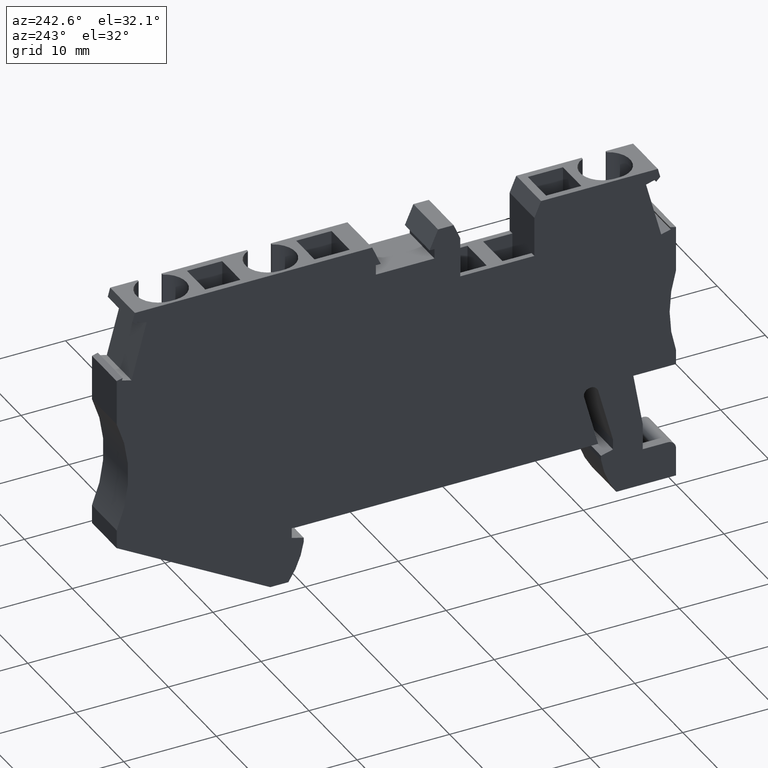
[diagram: clean part render]
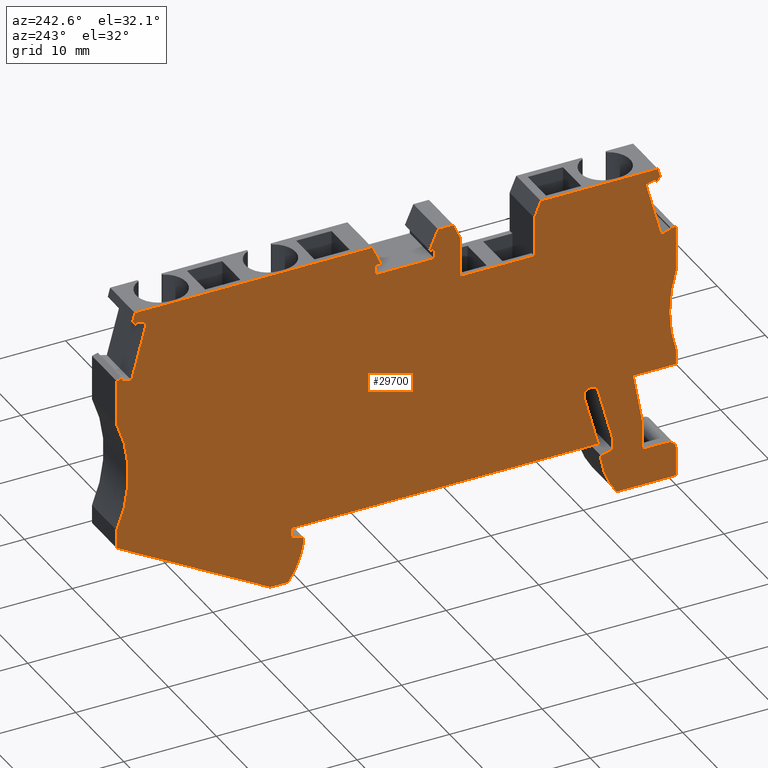
[diagram: same view with one face highlighted and labeled with its STEP entity id]
A machine part, auxiliary view. The second image highlights one B-rep face of the part: STEP entity #29700.
In plain terms, the highlighted planar face has unit normal (-1, 0, -0).
Its self-contained STEP definition (entity closure, byte-faithful):
#570=CARTESIAN_POINT('',(19.4911108748078,-44.4000000000014,48.52));
#580=VERTEX_POINT('',#570);
#630=CARTESIAN_POINT('',(27.2261399010515,-38.8846282117038,48.52));
#640=DIRECTION('',(0.,0.,-1.));
#650=DIRECTION('',(-1.,0.,0.));
#660=AXIS2_PLACEMENT_3D('',#630,#640,#650);
#670=CIRCLE('',#660,9.499999999999);
#680=CARTESIAN_POINT('',(17.8321672216751,-40.300000000002,48.52));
#690=VERTEX_POINT('',#680);
#700=EDGE_CURVE('',#580,#690,#670,.T.);
#1020=CARTESIAN_POINT('',(-31.8869546500592,-18.8507203460335,48.52));
#1030=DIRECTION('',(-0.965925826290942,-0.25881904509553,0.));
#1040=VECTOR('',#1030,1.);
#1050=LINE('',#1020,#1040);
#1060=CARTESIAN_POINT('',(-21.7289289220527,-16.1288855555983,48.52));
#1070=VERTEX_POINT('',#1060);
#1080=CARTESIAN_POINT('',(-22.3678327783245,-16.3000793279225,48.52));
#1090=VERTEX_POINT('',#1080);
#1100=EDGE_CURVE('',#1070,#1090,#1050,.T.);
#1710=CARTESIAN_POINT('',(-7.06783277832442,-15.1500000000016,48.52));
#1720=VERTEX_POINT('',#1710);
#1750=CARTESIAN_POINT('',(-31.4325633273473,-15.1500000000016,48.52));
#1760=DIRECTION('',(-1.,0.,0.));
#1770=VECTOR('',#1760,1.);
#1780=LINE('',#1750,#1770);
#1790=CARTESIAN_POINT('',(0.9321672216753,-15.1500000000016,48.52));
#1800=VERTEX_POINT('',#1790);
#1810=EDGE_CURVE('',#1800,#1720,#1780,.T.);
#3130=CARTESIAN_POINT('',(-15.9267764314572,-44.4000000000014,48.52));
#3140=VERTEX_POINT('',#3130);
#3300=CARTESIAN_POINT('',(-14.2678327783245,-40.3000000000023,48.52));
#3310=VERTEX_POINT('',#3300);
#3340=CARTESIAN_POINT('',(-23.6618054577009,-38.8846282117039,48.52));
#3350=DIRECTION('',(0.,0.,1.));
#3360=DIRECTION('',(1.,0.,0.));
#3370=AXIS2_PLACEMENT_3D('',#3340,#3350,#3360);
#3380=CIRCLE('',#3370,9.499999999999);
#3390=EDGE_CURVE('',#3140,#3310,#3380,.T.);
#3600=CARTESIAN_POINT('',(-12.439544951387,-32.6963521812913,48.52));
#3610=VERTEX_POINT('',#3600);
#3660=CARTESIAN_POINT('',(-13.1156930297916,-32.5151788497187,48.52));
#3670=DIRECTION('',(0.,0.,1.));
#3680=DIRECTION('',(1.,0.,0.));
#3690=AXIS2_PLACEMENT_3D('',#3660,#3670,#3680);
#3700=CIRCLE('',#3690,0.700000000000186);
#3710=CARTESIAN_POINT('',(-12.9558416625104,-31.8336749683074,48.52));
#3720=VERTEX_POINT('',#3710);
#3730=EDGE_CURVE('',#3610,#3720,#3700,.T.);
#4370=CARTESIAN_POINT('',(0.932167221675449,-42.5540372297518,48.52));
#4380=DIRECTION('',(-5.53723733531797E-15,1.,0.));
#4390=VECTOR('',#4380,1.);
#4400=LINE('',#4370,#4390);
#4410=CARTESIAN_POINT('',(0.932167221675279,-10.8500000000035,48.52));
#4420=VERTEX_POINT('',#4410);
#4430=EDGE_CURVE('',#1800,#4420,#4400,.T.);
#5190=CARTESIAN_POINT('',(10.0446672216767,-12.3250000000016,48.52));
#5200=VERTEX_POINT('',#5190);
#5350=CARTESIAN_POINT('',(3.71966722167661,-12.3250000000012,48.52));
#5360=VERTEX_POINT('',#5350);
#5390=CARTESIAN_POINT('',(-31.0856969427963,-12.3249999999992,48.52));
#5400=DIRECTION('',(-1.,5.79813974610488E-14,0.));
#5410=VECTOR('',#5400,1.);
#5420=LINE('',#5390,#5410);
#5430=EDGE_CURVE('',#5200,#5360,#5420,.T.);
#5660=CARTESIAN_POINT('',(37.3932633654038,-16.1288855555993,48.52));
#5670=VERTEX_POINT('',#5660);
#5820=CARTESIAN_POINT('',(37.4637417638794,-16.3919145195451,48.52));
#5830=VERTEX_POINT('',#5820);
#5860=CARTESIAN_POINT('',(45.9551175602486,-48.0821604176267,48.52));
#5870=DIRECTION('',(0.258819045103503,-0.965925826288805,0.));
#5880=VECTOR('',#5870,1.);
#5890=LINE('',#5860,#5880);
#5900=EDGE_CURVE('',#5670,#5830,#5890,.T.);
#6070=CARTESIAN_POINT('',(-16.1198905892186,-40.4603077989502,48.52));
#6080=DIRECTION('',(0.258819045103168,0.965925826288895,0.));
#6090=VECTOR('',#6080,1.);
#6100=LINE('',#6070,#6090);
#6110=CARTESIAN_POINT('',(-15.5678327783241,-38.3999999999967,48.52));
#6120=VERTEX_POINT('',#6110);
#6130=CARTESIAN_POINT('',(-13.9582471789275,-32.3929447639187,48.52));
#6140=VERTEX_POINT('',#6130);
#6150=EDGE_CURVE('',#6120,#6140,#6100,.T.);
#9040=CARTESIAN_POINT('',(17.8321672216754,-39.8483339501617,48.52));
#9050=VERTEX_POINT('',#9040);
#9080=CARTESIAN_POINT('',(-36.2442529339963,-54.3380670604362,48.52));
#9090=DIRECTION('',(0.965925826289086,0.258819045102457,0.));
#9100=VECTOR('',#9090,1.);
#9110=LINE('',#9080,#9100);
#9120=CARTESIAN_POINT('',(19.1321672216756,-39.5000000000013,48.52));
#9130=VERTEX_POINT('',#9120);
#9140=EDGE_CURVE('',#9050,#9130,#9110,.T.);
#9510=CARTESIAN_POINT('',(-20.2328552587309,-10.545462632217,48.52));
#9520=VERTEX_POINT('',#9510);
#9670=CARTESIAN_POINT('',(-20.1623768602548,-10.2824336682674,48.52));
#9680=VERTEX_POINT('',#9670);
#9710=CARTESIAN_POINT('',(-27.8621918696398,-39.0185344922441,48.52));
#9720=DIRECTION('',(0.258819045101928,0.965925826289227,0.));
#9730=VECTOR('',#9720,1.);
#9740=LINE('',#9710,#9730);
#9750=EDGE_CURVE('',#9520,#9680,#9740,.T.);
#10060=CARTESIAN_POINT('',(38.0321672216756,-35.2,48.52));
#10070=VERTEX_POINT('',#10060);
#10100=CARTESIAN_POINT('',(-39.1523305504364,-78.0224586081626,48.52));
#10110=DIRECTION('',(-0.874435210897321,-0.485142311021166,0.));
#10120=VECTOR('',#10110,1.);
#10130=LINE('',#10100,#10120);
#10140=CARTESIAN_POINT('',(21.4498082777127,-44.4000000000015,48.52));
#10150=VERTEX_POINT('',#10140);
#10160=EDGE_CURVE('',#10070,#10150,#10130,.T.);
#11840=CARTESIAN_POINT('',(10.4418215966526,-9.15000000000319,48.52));
#11850=VERTEX_POINT('',#11840);
#11880=CARTESIAN_POINT('',(-30.6958559619301,-9.15000000000321,48.52));
#11890=DIRECTION('',(1.,0.,0.));
#11900=VECTOR('',#11890,1.);
#11910=LINE('',#11880,#11900);
#11920=CARTESIAN_POINT('',(36.0719729923297,-9.1500000000032,48.52));
#11930=VERTEX_POINT('',#11920);
#11940=EDGE_CURVE('',#11850,#11930,#11910,.T.);
#12170=CARTESIAN_POINT('',(-22.3678327783245,-39.6931569607141,48.52));
#12180=DIRECTION('',(-2.05391259555654E-15,1.,0.));
#12190=VECTOR('',#12180,1.);
#12200=LINE('',#12170,#12190);
#12210=CARTESIAN_POINT('',(-22.3678327783245,-31.8000000000004,48.52));
#12220=VERTEX_POINT('',#12210);
#12230=CARTESIAN_POINT('',(-22.3678327783245,-30.2000000000027,48.52));
#12240=VERTEX_POINT('',#12230);
#12250=EDGE_CURVE('',#12220,#12240,#12200,.T.);
#13080=CARTESIAN_POINT('',(-22.3678327783245,-21.2000000000028,48.52));
#13090=VERTEX_POINT('',#13080);
#13120=CARTESIAN_POINT('',(-22.3678327783245,-39.6931569607141,48.52));
#13130=DIRECTION('',(-2.05391259555654E-15,1.,0.));
#13140=VECTOR('',#13130,1.);
#13150=LINE('',#13120,#13140);
#13160=EDGE_CURVE('',#13090,#1090,#13150,.T.);
#15080=CARTESIAN_POINT('',(-36.6769207995787,-25.7000000000028,48.52));
#15090=DIRECTION('',(0.,0.,1.));
#15100=DIRECTION('',(1.,0.,0.));
#15110=AXIS2_PLACEMENT_3D('',#15080,#15090,#15100);
#15120=CIRCLE('',#15110,15.);
#15130=EDGE_CURVE('',#12240,#13090,#15120,.T.);
#21140=CARTESIAN_POINT('',(46.5224801796062,-48.1518237877173,48.52));
#21150=DIRECTION('',(0.258819045102926,-0.96592582628896,0.));
#21160=VECTOR('',#21150,1.);
#21170=LINE('',#21140,#21160);
#21180=CARTESIAN_POINT('',(36.3299328899744,-10.1127194443267,48.52));
#21190=VERTEX_POINT('',#21180);
#21200=EDGE_CURVE('',#11930,#21190,#21170,.T.);
#21830=CARTESIAN_POINT('',(19.1321672216756,-44.7887162381846,48.52));
#21840=DIRECTION('',(0.,1.,0.));
#21850=VECTOR('',#21840,1.);
#21860=LINE('',#21830,#21850);
#21870=CARTESIAN_POINT('',(19.1321672216756,-38.4000000000014,48.52));
#21880=VERTEX_POINT('',#21870);
#21890=EDGE_CURVE('',#9130,#21880,#21860,.T.);
#22440=CARTESIAN_POINT('',(10.0446672216767,-43.6729115409796,48.52));
#22450=DIRECTION('',(0.,-1.,0.));
#22460=VECTOR('',#22450,1.);
#22470=LINE('',#22440,#22460);
#22480=CARTESIAN_POINT('',(10.0446672216767,-11.2550000000016,48.52));
#22490=VERTEX_POINT('',#22480);
#22500=EDGE_CURVE('',#22490,#5200,#22470,.T.);
#23250=CARTESIAN_POINT('',(-7.06783277832444,-10.8500000000033,48.52));
#23260=VERTEX_POINT('',#23250);
#23290=CARTESIAN_POINT('',(-7.06783277832433,-41.5717607425285,48.52));
#23300=DIRECTION('',(2.76167977375508E-15,-1.,0.));
#23310=VECTOR('',#23300,1.);
#23320=LINE('',#23290,#23310);
#23330=EDGE_CURVE('',#23260,#1720,#23320,.T.);
#23860=CARTESIAN_POINT('',(9.51676875458971,-11.2550000000016,48.52));
#23870=VERTEX_POINT('',#23860);
#23920=CARTESIAN_POINT('',(-30.9543174626305,-11.2550000000016,48.52));
#23930=DIRECTION('',(1.,0.,0.));
#23940=VECTOR('',#23930,1.);
#23950=LINE('',#23920,#23940);
#23960=EDGE_CURVE('',#23870,#22490,#23950,.T.);
#24460=CARTESIAN_POINT('',(-20.7658666864001,-16.6688508978053,48.52));
#24470=VERTEX_POINT('',#24460);
#24550=CARTESIAN_POINT('',(-21.7994073205286,-16.3919145195456,48.52));
#24560=VERTEX_POINT('',#24550);
#24590=CARTESIAN_POINT('',(-31.2733580505142,-13.8533770723114,48.52));
#24600=DIRECTION('',(-0.96592582628901,0.25881904510274,0.));
#24610=VECTOR('',#24600,1.);
#24620=LINE('',#24590,#24610);
#24630=EDGE_CURVE('',#24470,#24560,#24620,.T.);
#25170=CARTESIAN_POINT('',(-18.7678327783247,-40.4000000000018,48.52));
#25180=VERTEX_POINT('',#25170);
#25330=CARTESIAN_POINT('',(-21.4678327783247,-40.4000000000018,48.52));
#25340=VERTEX_POINT('',#25330);
#25370=CARTESIAN_POINT('',(-34.5328734901456,-40.4000000000018,48.52));
#25380=DIRECTION('',(1.,0.,0.));
#25390=VECTOR('',#25380,1.);
#25400=LINE('',#25370,#25390);
#25410=EDGE_CURVE('',#25340,#25180,#25400,.T.);
#26000=CARTESIAN_POINT('',(-13.9678327783249,-38.4000000000014,48.52));
#26010=VERTEX_POINT('',#26000);
#26040=CARTESIAN_POINT('',(-14.5708539323056,-40.6505055846918,48.52));
#26050=DIRECTION('',(0.258819045102995,0.965925826288942,0.));
#26060=VECTOR('',#26050,1.);
#26070=LINE('',#26040,#26060);
#26080=EDGE_CURVE('',#26010,#3610,#26070,.T.);
#26290=CARTESIAN_POINT('',(3.56530628123637,-42.8773460529762,48.52));
#26300=DIRECTION('',(0.707106781187503,0.707106781185593,0.));
#26310=VECTOR('',#26300,1.);
#26320=LINE('',#26290,#26310);
#26330=CARTESIAN_POINT('',(35.8971897020823,-10.5454626322177,48.52));
#26340=VERTEX_POINT('',#26330);
#26350=EDGE_CURVE('',#26340,#21190,#26320,.T.);
#26580=CARTESIAN_POINT('',(-18.7678327783247,-40.1351813799645,48.52));
#26590=DIRECTION('',(0.,1.,0.));
#26600=VECTOR('',#26590,1.);
#26610=LINE('',#26580,#26600);
#26620=CARTESIAN_POINT('',(-18.7678327783247,-37.5384100015805,48.52));
#26630=VERTEX_POINT('',#26620);
#26640=EDGE_CURVE('',#25180,#26630,#26610,.T.);
#26980=CARTESIAN_POINT('',(3.5299232216756,-12.7935680000014,48.52));
#26990=DIRECTION('',(-0.,-0.,-1.));
#27000=DIRECTION('',(0.,-1.,0.));
#27010=AXIS2_PLACEMENT_3D('',#26980,#26990,#27000);
#27020=PLANE('',#27010);
#27030=CARTESIAN_POINT('',(-29.7042555077718,-1.07406238320153,48.52));
#27040=DIRECTION('',(-0.707106781187495,0.7071067811856,0.));
#27050=VECTOR('',#27040,1.);
#27060=LINE('',#27030,#27050);
#27070=CARTESIAN_POINT('',(-20.6655984466232,-10.112719444326,48.52));
#27080=VERTEX_POINT('',#27070);
#27090=EDGE_CURVE('',#9520,#27080,#27060,.T.);
#27100=ORIENTED_EDGE('',*,*,#27090,.T.);
#27110=ORIENTED_EDGE('',*,*,#9750,.F.);
#27120=CARTESIAN_POINT('',(-30.4949591286781,-7.51382659371658,48.52));
#27130=DIRECTION('',(0.9659258262891,-0.258819045102404,0.));
#27140=VECTOR('',#27130,1.);
#27150=LINE('',#27120,#27140);
#27160=CARTESIAN_POINT('',(-19.1288362261254,-10.559370046527,48.52));
#27170=VERTEX_POINT('',#27160);
#27180=EDGE_CURVE('',#9680,#27170,#27150,.T.);
#27190=ORIENTED_EDGE('',*,*,#27180,.F.);
#27200=CARTESIAN_POINT('',(-26.7897303657746,-39.1502162070814,48.52));
#27210=DIRECTION('',(0.258819045102715,0.965925826289016,0.));
#27220=VECTOR('',#27210,1.);
#27230=LINE('',#27200,#27220);
#27240=EDGE_CURVE('',#24470,#27170,#27230,.T.);
#27250=ORIENTED_EDGE('',*,*,#27240,.T.);
#27260=ORIENTED_EDGE('',*,*,#24630,.F.);
#27270=CARTESIAN_POINT('',(-27.8621918696753,-39.0185344922397,48.52));
#27280=DIRECTION('',(0.258819045103216,0.965925826288882,0.));
#27290=VECTOR('',#27280,1.);
#27300=LINE('',#27270,#27290);
#27310=EDGE_CURVE('',#24560,#1070,#27300,.T.);
#27320=ORIENTED_EDGE('',*,*,#27310,.F.);
#27330=ORIENTED_EDGE('',*,*,#1100,.F.);
#27340=ORIENTED_EDGE('',*,*,#13160,.T.);
#27350=ORIENTED_EDGE('',*,*,#15130,.T.);
#27360=ORIENTED_EDGE('',*,*,#12250,.T.);
#27370=CARTESIAN_POINT('',(-33.4769262663803,-31.7999999999985,48.52));
#27380=DIRECTION('',(-1.,1.71668235182665E-13,0.));
#27390=VECTOR('',#27380,1.);
#27400=LINE('',#27370,#27390);
#27410=CARTESIAN_POINT('',(-17.755996268679,-31.8000000000011,48.52));
#27420=VERTEX_POINT('',#27410);
#27430=EDGE_CURVE('',#27420,#12220,#27400,.T.);
#27440=ORIENTED_EDGE('',*,*,#27430,.T.);
#27450=CARTESIAN_POINT('',(-19.2160104842472,-40.0801520771364,48.52));
#27460=DIRECTION('',(0.17364817766693,0.984807753012208,0.));
#27470=VECTOR('',#27460,1.);
#27480=LINE('',#27450,#27470);
#27490=EDGE_CURVE('',#26630,#27420,#27480,.T.);
#27500=ORIENTED_EDGE('',*,*,#27490,.T.);
#27510=ORIENTED_EDGE('',*,*,#26640,.T.);
#27520=ORIENTED_EDGE('',*,*,#25410,.T.);
#27530=CARTESIAN_POINT('',(-21.4678327783247,-41.3000000000018,48.52));
#27540=DIRECTION('',(0.,0.,-1.));
#27550=DIRECTION('',(-0.992546151641322,0.121869343405147,0.));
#27560=AXIS2_PLACEMENT_3D('',#27530,#27540,#27550);
#27570=CIRCLE('',#27560,0.9);
#27580=CARTESIAN_POINT('',(-22.3678327783247,-41.3000000000018,48.52));
#27590=VERTEX_POINT('',#27580);
#27600=EDGE_CURVE('',#27590,#25340,#27570,.T.);
#27610=ORIENTED_EDGE('',*,*,#27600,.T.);
#27620=CARTESIAN_POINT('',(-22.3678327783247,-39.6931569607141,48.52));
#27630=DIRECTION('',(0.,1.,0.));
#27640=VECTOR('',#27630,1.);
#27650=LINE('',#27620,#27640);
#27660=CARTESIAN_POINT('',(-22.3678327783247,-44.4000000000017,48.52));
#27670=VERTEX_POINT('',#27660);
#27680=EDGE_CURVE('',#27670,#27590,#27650,.T.);
#27690=ORIENTED_EDGE('',*,*,#27680,.T.);
#27700=CARTESIAN_POINT('',(-35.0240117337573,-44.4000000000022,48.52));
#27710=DIRECTION('',(-1.,-3.8219427622721E-14,0.));
#27720=VECTOR('',#27710,1.);
#27730=LINE('',#27700,#27720);
#27740=EDGE_CURVE('',#3140,#27670,#27730,.T.);
#27750=ORIENTED_EDGE('',*,*,#27740,.T.);
#27760=ORIENTED_EDGE('',*,*,#3390,.F.);
#27770=CARTESIAN_POINT('',(-14.2678327783248,-40.6877119040276,48.52));
#27780=DIRECTION('',(0.,-1.,0.));
#27790=VECTOR('',#27780,1.);
#27800=LINE('',#27770,#27790);
#27810=CARTESIAN_POINT('',(-14.2678327783247,-39.8483339501618,48.52));
#27820=VERTEX_POINT('',#27810);
#27830=EDGE_CURVE('',#27820,#3310,#27800,.T.);
#27840=ORIENTED_EDGE('',*,*,#27830,.T.);
#27850=CARTESIAN_POINT('',(-33.8218110628281,-34.6088612600111,48.52));
#27860=DIRECTION('',(0.96592582628904,-0.258819045102626,0.));
#27870=VECTOR('',#27860,1.);
#27880=LINE('',#27850,#27870);
#27890=CARTESIAN_POINT('',(-15.5678327783241,-39.5000000000014,48.52));
#27900=VERTEX_POINT('',#27890);
#27910=EDGE_CURVE('',#27900,#27820,#27880,.T.);
#27920=ORIENTED_EDGE('',*,*,#27910,.T.);
#27930=CARTESIAN_POINT('',(-15.5678327783241,-40.5280919748539,48.52));
#27940=DIRECTION('',(0.,-1.,0.));
#27950=VECTOR('',#27940,1.);
#27960=LINE('',#27930,#27950);
#27970=EDGE_CURVE('',#6120,#27900,#27960,.T.);
#27980=ORIENTED_EDGE('',*,*,#27970,.T.);
#27990=ORIENTED_EDGE('',*,*,#6150,.F.);
#28000=CARTESIAN_POINT('',(-13.1855065178956,-32.6000000000015,48.52));
#28010=DIRECTION('',(0.,0.,1.));
#28020=DIRECTION('',(1.,0.,0.));
#28030=AXIS2_PLACEMENT_3D('',#28000,#28010,#28020);
#28040=CIRCLE('',#28030,0.799999999999994);
#28050=EDGE_CURVE('',#3720,#6140,#28040,.T.);
#28060=ORIENTED_EDGE('',*,*,#28050,.T.);
#28070=ORIENTED_EDGE('',*,*,#3730,.T.);
#28080=ORIENTED_EDGE('',*,*,#26080,.T.);
#28090=CARTESIAN_POINT('',(-34.2873043683398,-38.4000000000014,48.52));
#28100=DIRECTION('',(-1.,0.,0.));
#28110=VECTOR('',#28100,1.);
#28120=LINE('',#28090,#28110);
#28130=EDGE_CURVE('',#21880,#26010,#28120,.T.);
#28140=ORIENTED_EDGE('',*,*,#28130,.T.);
#28150=ORIENTED_EDGE('',*,*,#21890,.T.);
#28160=ORIENTED_EDGE('',*,*,#9140,.T.);
#28170=CARTESIAN_POINT('',(17.8321672216721,-44.6290963090104,48.52));
#28180=DIRECTION('',(6.9022565440946E-13,1.,0.));
#28190=VECTOR('',#28180,1.);
#28200=LINE('',#28170,#28190);
#28210=EDGE_CURVE('',#690,#9050,#28200,.T.);
#28220=ORIENTED_EDGE('',*,*,#28210,.T.);
#28230=ORIENTED_EDGE('',*,*,#700,.T.);
#28240=CARTESIAN_POINT('',(-35.0240117337568,-44.3999999999983,48.52));
#28250=DIRECTION('',(-1.,5.79120085220097E-14,0.));
#28260=VECTOR('',#28250,1.);
#28270=LINE('',#28240,#28260);
#28280=EDGE_CURVE('',#10150,#580,#28270,.T.);
#28290=ORIENTED_EDGE('',*,*,#28280,.T.);
#28300=ORIENTED_EDGE('',*,*,#10160,.T.);
#28310=CARTESIAN_POINT('',(38.0321672216756,-47.1093444392495,48.52));
#28320=DIRECTION('',(-8.32667268468867E-17,-1.,0.));
#28330=VECTOR('',#28320,1.);
#28340=LINE('',#28310,#28330);
#28350=CARTESIAN_POINT('',(38.0321672216756,-33.2000000000027,48.52));
#28360=VERTEX_POINT('',#28350);
#28370=EDGE_CURVE('',#28360,#10070,#28340,.T.);
#28380=ORIENTED_EDGE('',*,*,#28370,.T.);
#28390=CARTESIAN_POINT('',(51.7798943065431,-27.2000000000027,48.52));
#28400=DIRECTION('',(0.,0.,1.));
#28410=DIRECTION('',(1.,0.,0.));
#28420=AXIS2_PLACEMENT_3D('',#28390,#28400,#28410);
#28430=CIRCLE('',#28420,15.);
#28440=CARTESIAN_POINT('',(38.0321672216757,-21.2000000000025,48.52));
#28450=VERTEX_POINT('',#28440);
#28460=EDGE_CURVE('',#28450,#28360,#28430,.T.);
#28470=ORIENTED_EDGE('',*,*,#28460,.T.);
#28480=CARTESIAN_POINT('',(38.0321672216757,-47.1093444392495,48.52));
#28490=DIRECTION('',(-5.55111512312578E-17,-1.,0.));
#28500=VECTOR('',#28490,1.);
#28510=LINE('',#28480,#28500);
#28520=CARTESIAN_POINT('',(38.0321672216757,-16.3000793279236,48.52));
#28530=VERTEX_POINT('',#28520);
#28540=EDGE_CURVE('',#28530,#28450,#28510,.T.);
#28550=ORIENTED_EDGE('',*,*,#28540,.T.);
#28560=CARTESIAN_POINT('',(-29.3566806060777,1.75670802586475,48.52));
#28570=DIRECTION('',(-0.965925826290939,0.25881904509554,0.));
#28580=VECTOR('',#28570,1.);
#28590=LINE('',#28560,#28580);
#28600=EDGE_CURVE('',#28530,#5670,#28590,.T.);
#28610=ORIENTED_EDGE('',*,*,#28600,.F.);
#28620=ORIENTED_EDGE('',*,*,#5900,.F.);
#28630=CARTESIAN_POINT('',(-33.9340399848925,-35.5228924805422,48.52));
#28640=DIRECTION('',(-0.965925826288933,-0.258819045103026,0.));
#28650=VECTOR('',#28640,1.);
#28660=LINE('',#28630,#28650);
#28670=CARTESIAN_POINT('',(36.4302011297503,-16.6688508978053,48.52));
#28680=VERTEX_POINT('',#28670);
#28690=EDGE_CURVE('',#5830,#28680,#28660,.T.);
#28700=ORIENTED_EDGE('',*,*,#28690,.F.);
#28710=CARTESIAN_POINT('',(44.8096873663856,-47.9415192742283,48.52));
#28720=DIRECTION('',(-0.258819045102705,0.965925826289019,0.));
#28730=VECTOR('',#28720,1.);
#28740=LINE('',#28710,#28730);
#28750=CARTESIAN_POINT('',(34.793170669476,-10.5593700465282,48.52));
#28760=VERTEX_POINT('',#28750);
#28770=EDGE_CURVE('',#28680,#28760,#28740,.T.);
#28780=ORIENTED_EDGE('',*,*,#28770,.F.);
#28790=CARTESIAN_POINT('',(-33.1026799550058,-28.7520083907735,48.52));
#28800=DIRECTION('',(0.9659258262891,0.258819045102404,0.));
#28810=VECTOR('',#28800,1.);
#28820=LINE('',#28790,#28810);
#28830=CARTESIAN_POINT('',(35.8267113036062,-10.2824336682684,48.52));
#28840=VERTEX_POINT('',#28830);
#28850=EDGE_CURVE('',#28760,#28840,#28820,.T.);
#28860=ORIENTED_EDGE('',*,*,#28850,.F.);
#28870=CARTESIAN_POINT('',(45.955117560187,-48.0821604176192,48.52));
#28880=DIRECTION('',(0.258819045101928,-0.965925826289227,0.));
#28890=VECTOR('',#28880,1.);
#28900=LINE('',#28870,#28890);
#28910=EDGE_CURVE('',#28840,#26340,#28900,.T.);
#28920=ORIENTED_EDGE('',*,*,#28910,.F.);
#28930=ORIENTED_EDGE('',*,*,#26350,.F.);
#28940=ORIENTED_EDGE('',*,*,#21200,.T.);
#28950=ORIENTED_EDGE('',*,*,#11940,.T.);
#28960=CARTESIAN_POINT('',(-3.97307229660357,-41.9517495493763,48.52));
#28970=DIRECTION('',(0.402320578212711,0.915498854366618,0.));
#28980=VECTOR('',#28970,1.);
#28990=LINE('',#28960,#28980);
#29000=EDGE_CURVE('',#23870,#11850,#28990,.T.);
#29010=ORIENTED_EDGE('',*,*,#29000,.T.);
#29020=ORIENTED_EDGE('',*,*,#23960,.F.);
#29030=ORIENTED_EDGE('',*,*,#22500,.F.);
#29040=ORIENTED_EDGE('',*,*,#5430,.F.);
#29050=CARTESIAN_POINT('',(3.71966722167659,-42.8962991932687,48.52));
#29060=DIRECTION('',(0.,1.,0.));
#29070=VECTOR('',#29060,1.);
#29080=LINE('',#29050,#29070);
#29090=CARTESIAN_POINT('',(3.71966722167663,-11.2550000000016,48.52));
#29100=VERTEX_POINT('',#29090);
#29110=EDGE_CURVE('',#5360,#29100,#29080,.T.);
#29120=ORIENTED_EDGE('',*,*,#29110,.F.);
#29130=CARTESIAN_POINT('',(-30.9543174626305,-11.2550000000016,48.52));
#29140=DIRECTION('',(1.,0.,0.));
#29150=VECTOR('',#29140,1.);
#29160=LINE('',#29130,#29150);
#29170=CARTESIAN_POINT('',(4.24756568876222,-11.2550000000016,48.52));
#29180=VERTEX_POINT('',#29170);
#29190=EDGE_CURVE('',#29100,#29180,#29160,.T.);
#29200=ORIENTED_EDGE('',*,*,#29190,.F.);
#29210=CARTESIAN_POINT('',(18.9756823710978,-44.7695023145185,48.52));
#29220=DIRECTION('',(0.402320578211921,-0.915498854366965,0.));
#29230=VECTOR('',#29220,1.);
#29240=LINE('',#29210,#29230);
#29250=CARTESIAN_POINT('',(3.32251284670154,-9.15000000000322,48.52));
#29260=VERTEX_POINT('',#29250);
#29270=EDGE_CURVE('',#29260,#29180,#29240,.T.);
#29280=ORIENTED_EDGE('',*,*,#29270,.T.);
#29290=CARTESIAN_POINT('',(-30.6958559619306,-9.15000000000734,48.52));
#29300=DIRECTION('',(-1.,-1.21042065259758E-13,0.));
#29310=VECTOR('',#29300,1.);
#29320=LINE('',#29290,#29310);
#29330=CARTESIAN_POINT('',(1.65066694095677,-9.15000000000342,48.52));
#29340=VERTEX_POINT('',#29330);
#29350=EDGE_CURVE('',#29260,#29340,#29320,.T.);
#29360=ORIENTED_EDGE('',*,*,#29350,.F.);
#29370=CARTESIAN_POINT('',(-11.8063846804767,-40.9899397279071,48.52));
#29380=DIRECTION('',(-0.389303997086923,-0.921109330021222,0.));
#29390=VECTOR('',#29380,1.);
#29400=LINE('',#29370,#29390);
#29410=EDGE_CURVE('',#29340,#4420,#29400,.T.);
#29420=ORIENTED_EDGE('',*,*,#29410,.F.);
#29430=ORIENTED_EDGE('',*,*,#4430,.T.);
#29440=ORIENTED_EDGE('',*,*,#1810,.F.);
#29450=ORIENTED_EDGE('',*,*,#23330,.T.);
#29460=CARTESIAN_POINT('',(6.62732765293212,-43.2533150025752,48.52));
#29470=DIRECTION('',(-0.389303997086923,0.921109330021222,0.));
#29480=VECTOR('',#29470,1.);
#29490=LINE('',#29460,#29480);
#29500=CARTESIAN_POINT('',(-7.7863324976059,-9.1500000000033,48.52));
#29510=VERTEX_POINT('',#29500);
#29520=EDGE_CURVE('',#23260,#29510,#29490,.T.);
#29530=ORIENTED_EDGE('',*,*,#29520,.F.);
#29540=CARTESIAN_POINT('',(-30.6958559619297,-9.15000000000042,48.52));
#29550=DIRECTION('',(-1.,1.26121335597418E-13,0.));
#29560=VECTOR('',#29550,1.);
#29570=LINE('',#29540,#29560);
#29580=CARTESIAN_POINT('',(-20.4076385489783,-9.15000000000172,48.52));
#29590=VERTEX_POINT('',#29580);
#29600=EDGE_CURVE('',#29510,#29590,#29570,.T.);
#29610=ORIENTED_EDGE('',*,*,#29600,.F.);
#29620=CARTESIAN_POINT('',(-28.3934111192612,-38.9533089699361,48.52));
#29630=DIRECTION('',(-0.258819045102936,-0.965925826288957,0.));
#29640=VECTOR('',#29630,1.);
#29650=LINE('',#29620,#29640);
#29660=EDGE_CURVE('',#29590,#27080,#29650,.T.);
#29670=ORIENTED_EDGE('',*,*,#29660,.F.);
#29680=EDGE_LOOP('',(#29670,#29610,#29530,#29450,#29440,#29430,#29420,
#29360,#29280,#29200,#29120,#29040,#29030,#29020,#29010,#28950,#28940,
#28930,#28920,#28860,#28780,#28700,#28620,#28610,#28550,#28470,#28380,
#28300,#28290,#28230,#28220,#28160,#28150,#28140,#28080,#28070,#28060,
#27990,#27980,#27920,#27840,#27760,#27750,#27690,#27610,#27520,#27510,
#27500,#27440,#27360,#27350,#27340,#27330,#27320,#27260,#27250,#27190,
#27110,#27100));
#29690=FACE_OUTER_BOUND('',#29680,.T.);
#29700=ADVANCED_FACE('',(#29690),#27020,.T.);